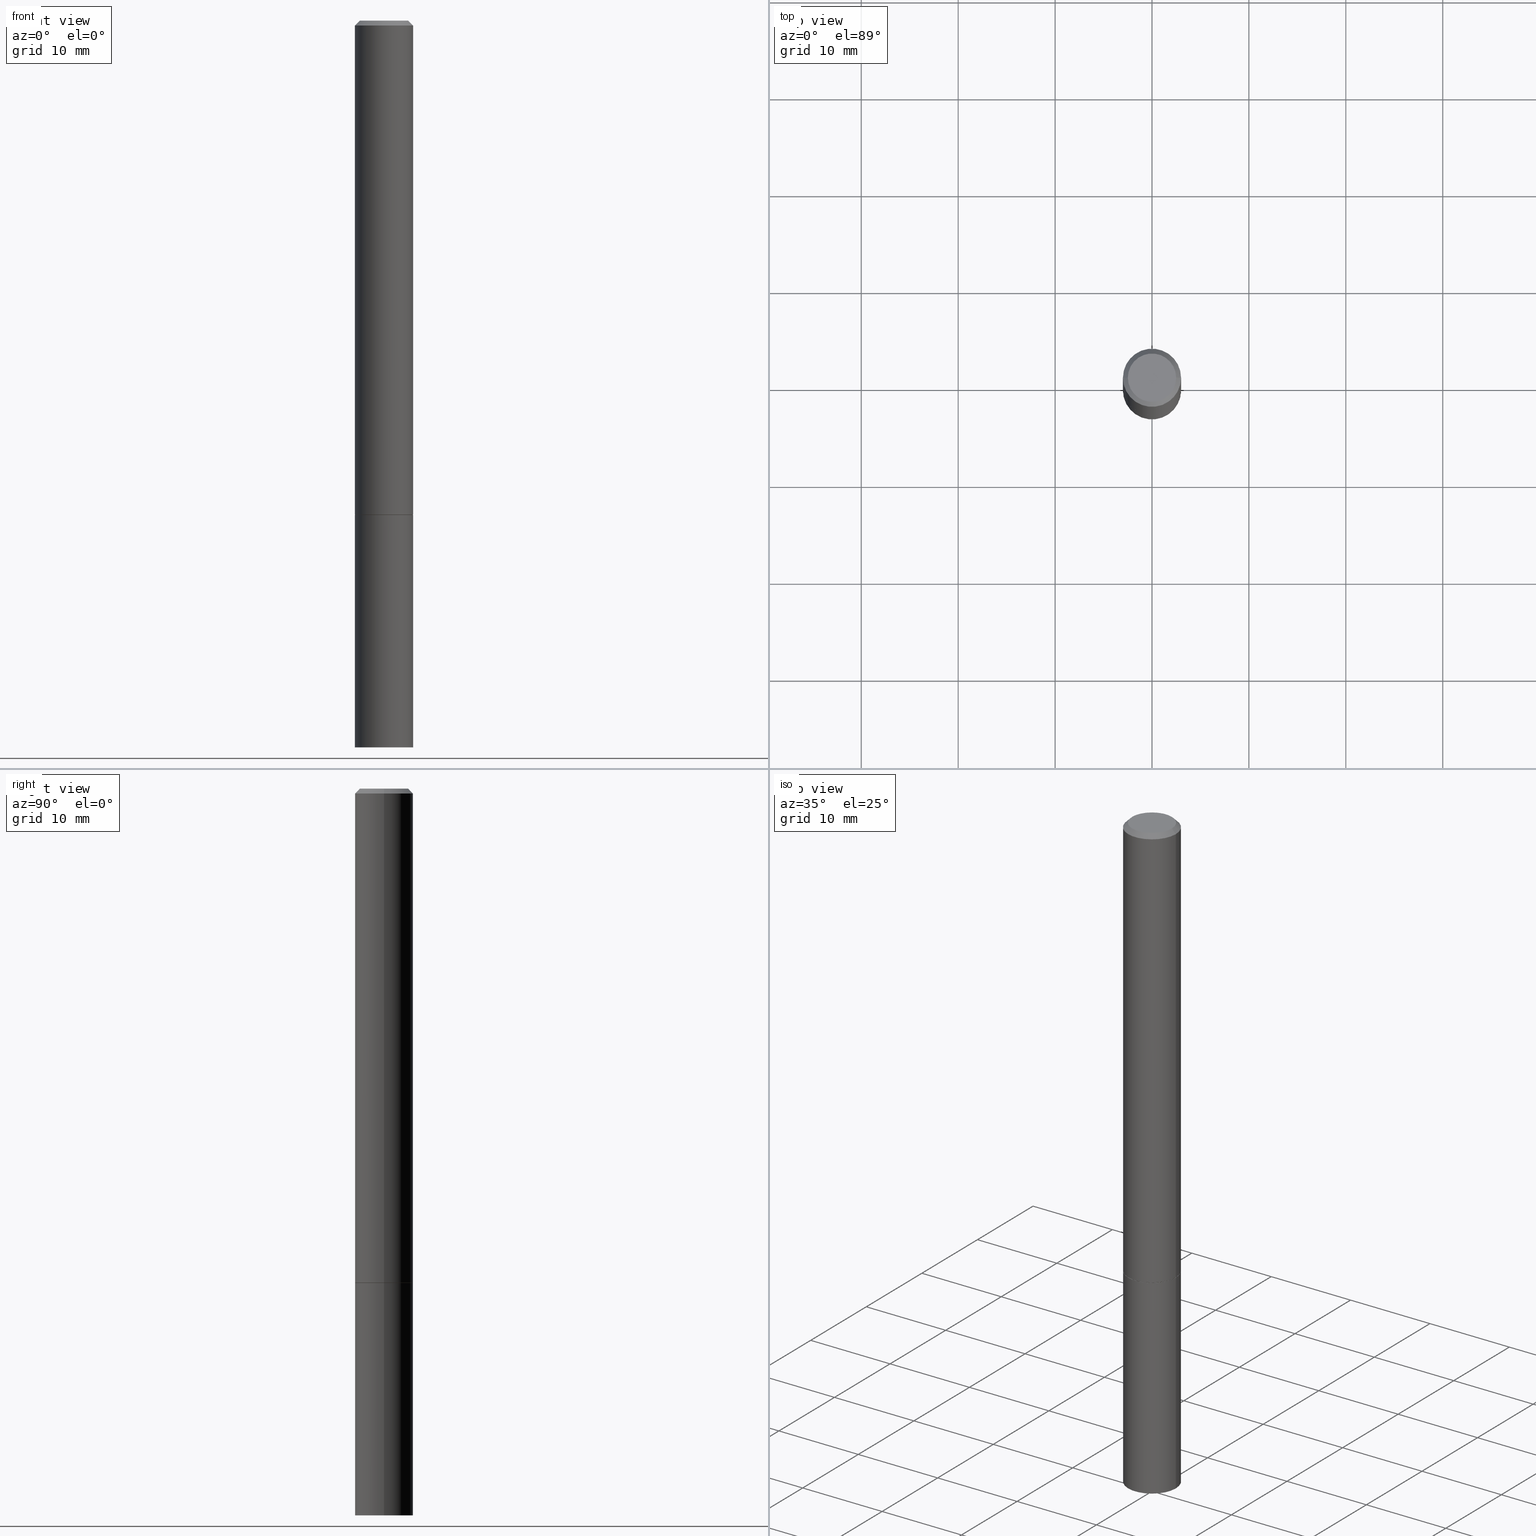
[diagram: canonical four-view strip — front | top / right | iso, engineering-drawing reading convention]
A machine part, canonical four-view strip (front | top / right | iso — engineering-drawing reading convention). The complete STEP part file that produces these views, byte-faithful:
ISO-10303-21;
HEADER;
FILE_DESCRIPTION (( 'STEP AP203' ),
    '1' );
FILE_NAME ('74333.STEP',
    '2024-02-29T08:42:18',
    ( '' ),
    ( '' ),
    'SwSTEP 2.0',
    'SolidWorks 2023',
    '' );
FILE_SCHEMA (( 'CONFIG_CONTROL_DESIGN' ));
ENDSEC;

DATA;
#1 = CC_DESIGN_DATE_AND_TIME_ASSIGNMENT ( #246, #184, ( #219 ) ) ;
#2 = CYLINDRICAL_SURFACE ( 'NONE', #16, 0.1180999999999998995 ) ;
#3 = AXIS2_PLACEMENT_3D ( 'NONE', #322, #35, #188 ) ;
#4 = CARTESIAN_POINT ( 'NONE',  ( 4.890937612370280165E-31, -6.982962677686301470E-17, -0.02000000000000003164 ) ) ;
#5 = DIRECTION ( 'NONE',  ( 1.000000000000000000, 0.000000000000000000, 0.000000000000000000 ) ) ;
#6 = AXIS2_PLACEMENT_3D ( 'NONE', #115, #114, #80 ) ;
#7 = VERTEX_POINT ( 'NONE', #255 ) ;
#8 = LINE ( 'NONE', #225, #189 ) ;
#9 = ORIENTED_EDGE ( 'NONE', *, *, #57, .F. ) ;
#10 = PRODUCT ( '74333', '74333', '', ( #172 ) ) ;
#11 = ADVANCED_FACE ( 'NONE', ( #358 ), #335, .F. ) ;
#12 = DIRECTION ( 'NONE',  ( 0.7071067811865466846, -7.319954787623252890E-15, -0.7071067811865483499 ) ) ;
#13 = ORIENTED_EDGE ( 'NONE', *, *, #150, .T. ) ;
#14 = LINE ( 'NONE', #350, #243 ) ;
#15 = ORIENTED_EDGE ( 'NONE', *, *, #224, .T. ) ;
#16 = AXIS2_PLACEMENT_3D ( 'NONE', #94, #154, #61 ) ;
#17 = FACE_OUTER_BOUND ( 'NONE', #348, .T. ) ;
#18 = APPROVAL_STATUS ( 'not_yet_approved' ) ;
#19 = EDGE_CURVE ( 'NONE', #160, #50, #28, .T. ) ;
#20 = ORIENTED_EDGE ( 'NONE', *, *, #137, .F. ) ;
#21 = FACE_OUTER_BOUND ( 'NONE', #171, .T. ) ;
#22 = CARTESIAN_POINT ( 'NONE',  ( 0.000000000000000000, 0.000000000000000000, 0.000000000000000000 ) ) ;
#23 = ORIENTED_EDGE ( 'NONE', *, *, #338, .F. ) ;
#24 = FACE_OUTER_BOUND ( 'NONE', #158, .T. ) ;
#25 = AXIS2_PLACEMENT_3D ( 'NONE', #77, #177, #337 ) ;
#26 = PERSON_AND_ORGANIZATION ( #318, #252 ) ;
#27 = PLANE ( 'NONE',  #163 ) ;
#28 = CIRCLE ( 'NONE', #289, 0.1170999999999999958 ) ;
#29 = EDGE_CURVE ( 'NONE', #354, #145, #191, .T. ) ;
#30 = APPROVAL ( #202, 'UNSPECIFIED' ) ;
#31 = ADVANCED_BREP_SHAPE_REPRESENTATION ( '74333', ( #63, #199, #66 ), #165 ) ;
#32 = AXIS2_PLACEMENT_3D ( 'NONE', #314, #197, #307 ) ;
#33 = ORIENTED_EDGE ( 'NONE', *, *, #360, .T. ) ;
#34 = EDGE_CURVE ( 'NONE', #253, #231, #151, .T. ) ;
#35 = DIRECTION ( 'NONE',  ( -2.445468806185136597E-29, 3.491481338843145583E-15, 1.000000000000000000 ) ) ;
#36 = ORIENTED_EDGE ( 'NONE', *, *, #168, .T. ) ;
#37 = VECTOR ( 'NONE', #286, 39.37007874015748143 ) ;
#38 = ORIENTED_EDGE ( 'NONE', *, *, #237, .T. ) ;
#39 = APPROVAL_PERSON_ORGANIZATION ( #26, #30, #143 ) ;
#40 = VERTEX_POINT ( 'NONE', #334 ) ;
#41 = APPROVAL_STATUS ( 'not_yet_approved' ) ;
#42 = ORIENTED_EDGE ( 'NONE', *, *, #285, .T. ) ;
#43 = AXIS2_PLACEMENT_3D ( 'NONE', #366, #96, #152 ) ;
#44 = CC_DESIGN_APPROVAL ( #147, ( #267 ) ) ;
#45 = ADVANCED_FACE ( 'NONE', ( #180 ), #182, .T. ) ;
#46 = CALENDAR_DATE ( 2024, 29, 2 ) ;
#47 = DIRECTION ( 'NONE',  ( -1.000000000000000000, 6.982962677686265922E-15, -4.876176775795935793E-29 ) ) ;
#48 = DIRECTION ( 'NONE',  ( -2.445468806185136597E-29, 3.491481338843145583E-15, 1.000000000000000000 ) ) ;
#49 = DIRECTION ( 'NONE',  ( -1.000000000000000000, 6.982962677686265922E-15, -4.876176775795935793E-29 ) ) ;
#50 = VERTEX_POINT ( 'NONE', #82 ) ;
#51 = ADVANCED_FACE ( 'NONE', ( #206 ), #312, .T. ) ;
#52 = AXIS2_PLACEMENT_3D ( 'NONE', #4, #118, #124 ) ;
#53 = PRODUCT_DEFINITION_FORMATION_WITH_SPECIFIED_SOURCE ( 'ANY', '', #10, .NOT_KNOWN. ) ;
#54 = CARTESIAN_POINT ( 'NONE',  ( -0.1180999999999997746, 7.548582654578835839E-16, -0.02000000000000003164 ) ) ;
#55 = DIRECTION ( 'NONE',  ( 1.000000000000000000, -6.982962677686266711E-15, 4.876176775795936353E-29 ) ) ;
#56 = DIMENSIONAL_EXPONENTS ( 1.000000000000000000, 0.000000000000000000, 0.000000000000000000, 0.000000000000000000, 0.000000000000000000, 0.000000000000000000, 0.000000000000000000 ) ;
#57 = EDGE_CURVE ( 'NONE', #247, #253, #344, .T. ) ;
#58 = CARTESIAN_POINT ( 'NONE',  ( 4.910256815939135309E-29, -7.010545380263150922E-15, -2.007899999999999796 ) ) ;
#59 = CIRCLE ( 'NONE', #131, 0.1181000000000000105 ) ;
#60 = LINE ( 'NONE', #325, #220 ) ;
#61 = DIRECTION ( 'NONE',  ( 1.000000000000000000, -6.982962677686266711E-15, 4.876176775795935232E-29 ) ) ;
#62 = LINE ( 'NONE', #54, #174 ) ;
#63 = MANIFOLD_SOLID_BREP ( 'Body-Move/Copy2[1]', #264 ) ;
#64 = CARTESIAN_POINT ( 'NONE',  ( 2.087702828670439639E-46, -2.980686340760894400E-32, -8.537024980200822558E-18 ) ) ;
#65 = CIRCLE ( 'NONE', #294, 0.1180999999999999966 ) ;
#66 = AXIS2_PLACEMENT_3D ( 'NONE', #356, #228, #5 ) ;
#67 =( LENGTH_UNIT ( ) NAMED_UNIT ( * ) SI_UNIT ( $, .METRE. ) );
#68 = ORIENTED_EDGE ( 'NONE', *, *, #208, .T. ) ;
#69 = CARTESIAN_POINT ( 'NONE',  ( -0.09809999999999979847, 7.199434520694525264E-16, -8.537024980205735990E-18 ) ) ;
#70 = EDGE_LOOP ( 'NONE', ( #200, #271 ) ) ;
#71 = AXIS2_PLACEMENT_3D ( 'NONE', #100, #192, #355 ) ;
#72 = EDGE_LOOP ( 'NONE', ( #288, #229, #223, #36 ) ) ;
#73 = CARTESIAN_POINT ( 'NONE',  ( 0.1181000000000000105, -7.831741791159054599E-15, -2.006899999999999462 ) ) ;
#74 = EDGE_LOOP ( 'NONE', ( #357, #136, #300, #251 ) ) ;
#75 = CARTESIAN_POINT ( 'NONE',  ( 7.220980290903470182E-29, -1.030964609733603853E-14, -2.952799999999999869 ) ) ;
#76 = APPROVAL ( #41, 'UNSPECIFIED' ) ;
#77 = CARTESIAN_POINT ( 'NONE',  ( 4.890937612370280165E-31, -6.982962677686301470E-17, -0.02000000000000003164 ) ) ;
#78 = CIRCLE ( 'NONE', #52, 0.1180999999999997746 ) ;
#79 = CC_DESIGN_PERSON_AND_ORGANIZATION_ASSIGNMENT ( #262, #310, ( #53 ) ) ;
#80 = DIRECTION ( 'NONE',  ( 1.000000000000000000, -6.982962677686264344E-15, 0.000000000000000000 ) ) ;
#81 = PERSON_AND_ORGANIZATION ( #318, #252 ) ;
#82 = CARTESIAN_POINT ( 'NONE',  ( -0.1170999999999999958, -6.173201382339850542E-15, -2.007899999999999796 ) ) ;
#83 = CIRCLE ( 'NONE', #3, 0.1181000000000000105 ) ;
#84 = APPROVAL_DATE_TIME ( #283, #30 ) ;
#85 = LOCAL_TIME ( 3, 42, 18.00000000000000000, #195 ) ;
#86 = DIRECTION ( 'NONE',  ( -2.445468806185136597E-29, 3.491481338843145583E-15, 1.000000000000000000 ) ) ;
#87 = ADVANCED_FACE ( 'NONE', ( #242 ), #324, .F. ) ;
#88 = DIRECTION ( 'NONE',  ( 2.438088387897960049E-29, -3.491481338843145188E-15, -1.000000000000000000 ) ) ;
#89 = CC_DESIGN_PERSON_AND_ORGANIZATION_ASSIGNMENT ( #81, #259, ( #53 ) ) ;
#90 = CARTESIAN_POINT ( 'NONE',  ( 2.087702828670439639E-46, -2.980686340760894400E-32, -8.537024980200822558E-18 ) ) ;
#91 = AXIS2_PLACEMENT_3D ( 'NONE', #345, #88, #241 ) ;
#92 = CARTESIAN_POINT ( 'NONE',  ( -0.1180999999999999966, -7.820944767866917317E-15, -2.952799999999999869 ) ) ;
#93 = LOCAL_TIME ( 3, 42, 18.00000000000000000, #176 ) ;
#94 = CARTESIAN_POINT ( 'NONE',  ( 0.000000000000000000, 0.000000000000000000, 0.000000000000000000 ) ) ;
#95 = EDGE_CURVE ( 'NONE', #278, #7, #226, .T. ) ;
#96 = DIRECTION ( 'NONE',  ( 2.445468806185136597E-29, -3.491481338843145583E-15, -1.000000000000000000 ) ) ;
#97 = PRODUCT_RELATED_PRODUCT_CATEGORY ( 'detail', '', ( #10 ) ) ;
#98 = ORIENTED_EDGE ( 'NONE', *, *, #342, .T. ) ;
#99 = CC_DESIGN_APPROVAL ( #76, ( #219 ) ) ;
#100 = CARTESIAN_POINT ( 'NONE',  ( 4.910256815939135309E-29, -7.010545380263150922E-15, -2.007899999999999796 ) ) ;
#101 = PERSON_AND_ORGANIZATION_ROLE ( 'design_owner' ) ;
#102 = ORIENTED_EDGE ( 'NONE', *, *, #285, .F. ) ;
#103 = DIRECTION ( 'NONE',  ( 1.000000000000000000, -6.982962677686264344E-15, 0.000000000000000000 ) ) ;
#104 = CC_DESIGN_DATE_AND_TIME_ASSIGNMENT ( #149, #364, ( #267 ) ) ;
#105 = VECTOR ( 'NONE', #12, 39.37007874015748143 ) ;
#106 = ORIENTED_EDGE ( 'NONE', *, *, #119, .T. ) ;
#107 = APPLICATION_PROTOCOL_DEFINITION ( 'international standard', 'config_control_design', 1994, #196 ) ;
#108 = ADVANCED_FACE ( 'NONE', ( #185 ), #2, .T. ) ;
#109 = PERSON_AND_ORGANIZATION ( #318, #252 ) ;
#110 = ORIENTED_EDGE ( 'NONE', *, *, #19, .T. ) ;
#111 = CARTESIAN_POINT ( 'NONE',  ( -0.1180999999999999966, 8.391509709326782957E-16, -5.809262341591043784E-30 ) ) ;
#112 = DIRECTION ( 'NONE',  ( 2.438088387897960049E-29, -3.491481338843145188E-15, -1.000000000000000000 ) ) ;
#113 = ORIENTED_EDGE ( 'NONE', *, *, #363, .F. ) ;
#114 = DIRECTION ( 'NONE',  ( -2.445468806185136597E-29, 3.491481338843145583E-15, 1.000000000000000000 ) ) ;
#115 = CARTESIAN_POINT ( 'NONE',  ( 4.910256815939135309E-29, -7.010545380263150922E-15, -2.007899999999999796 ) ) ;
#116 = AXIS2_PLACEMENT_3D ( 'NONE', #336, #179, #139 ) ;
#117 = LOCAL_TIME ( 3, 42, 18.00000000000000000, #210 ) ;
#118 = DIRECTION ( 'NONE',  ( -2.445468806185136597E-29, 3.491481338843145583E-15, 1.000000000000000000 ) ) ;
#119 = EDGE_CURVE ( 'NONE', #140, #247, #83, .T. ) ;
#120 = DIRECTION ( 'NONE',  ( 1.000000000000000000, -6.982962677686264344E-15, 0.000000000000000000 ) ) ;
#121 = AXIS2_PLACEMENT_3D ( 'NONE', #258, #112, #49 ) ;
#122 = DIRECTION ( 'NONE',  ( -2.445468806185136877E-29, 3.491481338843145188E-15, 1.000000000000000000 ) ) ;
#123 = CIRCLE ( 'NONE', #266, 0.1180999999999999966 ) ;
#124 = DIRECTION ( 'NONE',  ( 1.000000000000000000, -6.982962677686266711E-15, 0.000000000000000000 ) ) ;
#125 = DIRECTION ( 'NONE',  ( -0.7071067811865294761, 7.493145998870289474E-15, 0.7071067811865655584 ) ) ;
#126 = ORIENTED_EDGE ( 'NONE', *, *, #208, .F. ) ;
#127 = DIRECTION ( 'NONE',  ( -2.445468806185136597E-29, 3.491481338843145583E-15, 1.000000000000000000 ) ) ;
#128 = CARTESIAN_POINT ( 'NONE',  ( -0.1170999999999999958, -6.178499836688073733E-15, -2.007899999999999796 ) ) ;
#129 = EDGE_LOOP ( 'NONE', ( #110, #98, #126, #250 ) ) ;
#130 = COORDINATED_UNIVERSAL_TIME_OFFSET ( 5, 0, .BEHIND. ) ;
#131 = AXIS2_PLACEMENT_3D ( 'NONE', #249, #222, #103 ) ;
#132 = EDGE_CURVE ( 'NONE', #40, #145, #299, .T. ) ;
#133 = FACE_OUTER_BOUND ( 'NONE', #221, .T. ) ;
#134 = CALENDAR_DATE ( 2024, 29, 2 ) ;
#135 = APPLICATION_CONTEXT ( 'configuration controlled 3d designs of mechanical parts and assemblies' ) ;
#136 = ORIENTED_EDGE ( 'NONE', *, *, #29, .T. ) ;
#137 = EDGE_CURVE ( 'NONE', #351, #354, #65, .T. ) ;
#138 = ORIENTED_EDGE ( 'NONE', *, *, #150, .F. ) ;
#139 = DIRECTION ( 'NONE',  ( 1.000000000000000000, -6.982962677686266711E-15, 4.876176775795936353E-29 ) ) ;
#140 = VERTEX_POINT ( 'NONE', #217 ) ;
#141 = DATE_AND_TIME ( #340, #93 ) ;
#142 = PLANE ( 'NONE',  #121 ) ;
#143 = APPROVAL_ROLE ( '' ) ;
#144 = DIRECTION ( 'NONE',  ( -2.445468806185136597E-29, 3.491481338843145583E-15, 1.000000000000000000 ) ) ;
#145 = VERTEX_POINT ( 'NONE', #212 ) ;
#146 = CLOSED_SHELL ( 'NONE', ( #205, #308, #183, #45, #108, #214, #162, #11 ) ) ;
#147 = APPROVAL ( #18, 'UNSPECIFIED' ) ;
#148 = DIRECTION ( 'NONE',  ( 1.000000000000000000, -6.982962677686273021E-15, 0.000000000000000000 ) ) ;
#149 = DATE_AND_TIME ( #46, #117 ) ;
#150 = EDGE_CURVE ( 'NONE', #7, #278, #281, .T. ) ;
#151 = CIRCLE ( 'NONE', #193, 0.1180999999999997746 ) ;
#152 = DIRECTION ( 'NONE',  ( -1.000000000000000000, 6.982962677686266711E-15, 0.000000000000000000 ) ) ;
#153 = CARTESIAN_POINT ( 'NONE',  ( 4.910256815939135309E-29, -7.010545380263150922E-15, -2.007899999999999796 ) ) ;
#154 = DIRECTION ( 'NONE',  ( -2.445468806185136597E-29, 3.491481338843145583E-15, 1.000000000000000000 ) ) ;
#155 = DIRECTION ( 'NONE',  ( 1.000000000000000000, -6.982962677686264344E-15, 0.000000000000000000 ) ) ;
#156 = CARTESIAN_POINT ( 'NONE',  ( 7.220980290903470182E-29, -1.030964609733603853E-14, -2.952799999999999869 ) ) ;
#157 =( NAMED_UNIT ( * ) PLANE_ANGLE_UNIT ( ) SI_UNIT ( $, .RADIAN. ) );
#158 = EDGE_LOOP ( 'NONE', ( #68, #42, #327, #9 ) ) ;
#159 = DIRECTION ( 'NONE',  ( -2.445468806185136597E-29, 3.491481338843145583E-15, 1.000000000000000000 ) ) ;
#160 = VERTEX_POINT ( 'NONE', #270 ) ;
#161 = APPROVAL_DATE_TIME ( #170, #76 ) ;
#162 = ADVANCED_FACE ( 'NONE', ( #293 ), #27, .F. ) ;
#163 = AXIS2_PLACEMENT_3D ( 'NONE', #58, #295, #347 ) ;
#164 = CC_DESIGN_PERSON_AND_ORGANIZATION_ASSIGNMENT ( #109, #273, ( #219 ) ) ;
#165 =( GEOMETRIC_REPRESENTATION_CONTEXT ( 3 ) GLOBAL_UNCERTAINTY_ASSIGNED_CONTEXT ( ( #216 ) ) GLOBAL_UNIT_ASSIGNED_CONTEXT ( ( #317, #157, #291 ) ) REPRESENTATION_CONTEXT ( 'NONE', 'WORKASPACE' ) );
#166 = ORIENTED_EDGE ( 'NONE', *, *, #292, .F. ) ;
#167 = ORIENTED_EDGE ( 'NONE', *, *, #34, .T. ) ;
#168 = EDGE_CURVE ( 'NONE', #231, #253, #78, .T. ) ;
#169 = CARTESIAN_POINT ( 'NONE',  ( 0.1180999999999997746, -8.800544403136792597E-16, -0.02000000000000003164 ) ) ;
#170 = DATE_AND_TIME ( #277, #85 ) ;
#171 = EDGE_LOOP ( 'NONE', ( #20, #23 ) ) ;
#172 = MECHANICAL_CONTEXT ( 'NONE', #135, 'mechanical' ) ;
#173 = ORIENTED_EDGE ( 'NONE', *, *, #29, .F. ) ;
#174 = VECTOR ( 'NONE', #238, 39.37007874015748143 ) ;
#175 = CC_DESIGN_SECURITY_CLASSIFICATION ( #267, ( #53 ) ) ;
#176 = COORDINATED_UNIVERSAL_TIME_OFFSET ( 5, 0, .BEHIND. ) ;
#177 = DIRECTION ( 'NONE',  ( 2.445468806185136597E-29, -3.491481338843145583E-15, -1.000000000000000000 ) ) ;
#178 = CARTESIAN_POINT ( 'NONE',  ( 4.910256815939135309E-29, -7.010545380263150922E-15, -2.007899999999999796 ) ) ;
#179 = DIRECTION ( 'NONE',  ( -2.445468806185136597E-29, 3.491481338843145583E-15, 1.000000000000000000 ) ) ;
#180 = FACE_OUTER_BOUND ( 'NONE', #72, .T. ) ;
#181 = EDGE_LOOP ( 'NONE', ( #138, #38, #167, #113 ) ) ;
#182 = CONICAL_SURFACE ( 'NONE', #25, 0.1180999999999997746, 0.7853981633974471688 ) ;
#183 = ADVANCED_FACE ( 'NONE', ( #244 ), #260, .T. ) ;
#184 = DATE_TIME_ROLE ( 'creation_date' ) ;
#185 = FACE_OUTER_BOUND ( 'NONE', #275, .T. ) ;
#186 = DIRECTION ( 'NONE',  ( 1.000000000000000000, -6.982962677686267499E-15, 4.876195163481342132E-29 ) ) ;
#187 = DIRECTION ( 'NONE',  ( 1.000000000000000000, -6.982962677686265133E-15, 0.000000000000000000 ) ) ;
#188 = DIRECTION ( 'NONE',  ( 1.000000000000000000, -6.982962677686264344E-15, 0.000000000000000000 ) ) ;
#189 = VECTOR ( 'NONE', #256, 39.37007874015748143 ) ;
#190 = FACE_OUTER_BOUND ( 'NONE', #129, .T. ) ;
#191 = LINE ( 'NONE', #111, #37 ) ;
#192 = DIRECTION ( 'NONE',  ( -2.445468806185136597E-29, 3.491481338843145583E-15, 1.000000000000000000 ) ) ;
#193 = AXIS2_PLACEMENT_3D ( 'NONE', #234, #290, #230 ) ;
#194 = EDGE_LOOP ( 'NONE', ( #352, #166 ) ) ;
#195 = COORDINATED_UNIVERSAL_TIME_OFFSET ( 5, 0, .BEHIND. ) ;
#196 = APPLICATION_CONTEXT ( 'configuration controlled 3d designs of mechanical parts and assemblies' ) ;
#197 = DIRECTION ( 'NONE',  ( -2.445468806185136597E-29, 3.491481338843145583E-15, 1.000000000000000000 ) ) ;
#198 = DIRECTION ( 'NONE',  ( 1.000000000000000000, -6.982962677686265133E-15, 0.000000000000000000 ) ) ;
#199 = MANIFOLD_SOLID_BREP ( 'Body-Move/Copy2[2]', #146 ) ;
#200 = ORIENTED_EDGE ( 'NONE', *, *, #132, .T. ) ;
#201 = DIRECTION ( 'NONE',  ( -2.445468806185136597E-29, 3.491481338843145583E-15, 1.000000000000000000 ) ) ;
#202 = APPROVAL_STATUS ( 'not_yet_approved' ) ;
#203 = CARTESIAN_POINT ( 'NONE',  ( 6.850286386810212718E-16, 0.09809999999999979847, -3.467828318306122952E-16 ) ) ;
#204 = AXIS2_PLACEMENT_3D ( 'NONE', #153, #268, #187 ) ;
#205 = ADVANCED_FACE ( 'NONE', ( #190 ), #235, .T. ) ;
#206 = FACE_OUTER_BOUND ( 'NONE', #74, .T. ) ;
#207 = PRODUCT_DEFINITION_SHAPE ( 'NONE', 'NONE',  #219 ) ;
#208 = EDGE_CURVE ( 'NONE', #247, #140, #59, .T. ) ;
#209 = CIRCLE ( 'NONE', #265, 0.1180999999999999966 ) ;
#210 = COORDINATED_UNIVERSAL_TIME_OFFSET ( 5, 0, .BEHIND. ) ;
#211 = DIRECTION ( 'NONE',  ( -2.445468806185136597E-29, 3.491481338843145583E-15, 1.000000000000000000 ) ) ;
#212 = CARTESIAN_POINT ( 'NONE',  ( -0.1180999999999999966, -7.820944767866917317E-15, -2.007899999999999796 ) ) ;
#213 = LOCAL_TIME ( 3, 42, 18.00000000000000000, #130 ) ;
#214 = ADVANCED_FACE ( 'NONE', ( #133 ), #315, .T. ) ;
#215 = DIRECTION ( 'NONE',  ( 1.000000000000000000, -6.982962677686267499E-15, 4.876195163481342132E-29 ) ) ;
#216 = UNCERTAINTY_MEASURE_WITH_UNIT (LENGTH_MEASURE( 1.000000000000000082E-05 ), #317, 'distance_accuracy_value', 'NONE');
#217 = CARTESIAN_POINT ( 'NONE',  ( -0.1181000000000000383, -2.699290791917902676E-15, -2.006899999999999462 ) ) ;
#218 = CARTESIAN_POINT ( 'NONE',  ( 0.1180999999999999966, -1.113433398957078679E-14, -2.952799999999999869 ) ) ;
#219 = PRODUCT_DEFINITION ( 'UNKNOWN', '', #53, #298 ) ;
#220 = VECTOR ( 'NONE', #361, 39.37007874015748143 ) ;
#221 = EDGE_LOOP ( 'NONE', ( #333, #248, #15, #245 ) ) ;
#222 = DIRECTION ( 'NONE',  ( -2.445468806185136597E-29, 3.491481338843145583E-15, 1.000000000000000000 ) ) ;
#223 = ORIENTED_EDGE ( 'NONE', *, *, #363, .T. ) ;
#224 = EDGE_CURVE ( 'NONE', #160, #247, #14, .T. ) ;
#225 = CARTESIAN_POINT ( 'NONE',  ( -0.1180999999999998995, 8.391509709326776054E-16, -5.809262341591038879E-30 ) ) ;
#226 = CIRCLE ( 'NONE', #321, 0.09809999999999979847 ) ;
#227 = DIRECTION ( 'NONE',  ( 0.7071067811865294761, -2.468850131082068128E-15, 0.7071067811865655584 ) ) ;
#228 = DIRECTION ( 'NONE',  ( 0.000000000000000000, 0.000000000000000000, 1.000000000000000000 ) ) ;
#229 = ORIENTED_EDGE ( 'NONE', *, *, #95, .F. ) ;
#230 = DIRECTION ( 'NONE',  ( 1.000000000000000000, -6.982962677686266711E-15, 0.000000000000000000 ) ) ;
#231 = VERTEX_POINT ( 'NONE', #276 ) ;
#232 = EDGE_CURVE ( 'NONE', #145, #40, #123, .T. ) ;
#233 = CYLINDRICAL_SURFACE ( 'NONE', #116, 0.1180999999999999966 ) ;
#234 = CARTESIAN_POINT ( 'NONE',  ( 4.890937612370280165E-31, -6.982962677686301470E-17, -0.02000000000000003164 ) ) ;
#235 = CONICAL_SURFACE ( 'NONE', #304, 0.1170999999999999958, 0.7853981633974227439 ) ;
#236 = COORDINATED_UNIVERSAL_TIME_OFFSET ( 5, 0, .BEHIND. ) ;
#237 = EDGE_CURVE ( 'NONE', #7, #253, #302, .T. ) ;
#238 = DIRECTION ( 'NONE',  ( -0.7071067811865466846, 2.468850131082247989E-15, -0.7071067811865483499 ) ) ;
#239 = PERSON_AND_ORGANIZATION_ROLE ( 'classification_officer' ) ;
#240 = DIRECTION ( 'NONE',  ( 1.000000000000000000, -6.982962677686273021E-15, 0.000000000000000000 ) ) ;
#241 = DIRECTION ( 'NONE',  ( -1.000000000000000000, 6.982962677686265922E-15, -4.876176775795935793E-29 ) ) ;
#242 = FACE_OUTER_BOUND ( 'NONE', #70, .T. ) ;
#243 = VECTOR ( 'NONE', #227, 39.37007874015748143 ) ;
#244 = FACE_OUTER_BOUND ( 'NONE', #181, .T. ) ;
#245 = ORIENTED_EDGE ( 'NONE', *, *, #119, .F. ) ;
#246 = DATE_AND_TIME ( #134, #213 ) ;
#247 = VERTEX_POINT ( 'NONE', #73 ) ;
#248 = ORIENTED_EDGE ( 'NONE', *, *, #292, .T. ) ;
#249 = CARTESIAN_POINT ( 'NONE',  ( 4.907811347132949706E-29, -7.007053898924307126E-15, -2.006899999999999462 ) ) ;
#250 = ORIENTED_EDGE ( 'NONE', *, *, #224, .F. ) ;
#251 = ORIENTED_EDGE ( 'NONE', *, *, #360, .F. ) ;
#252 = ORGANIZATION ( 'UNSPECIFIED', 'UNSPECIFIED', '' ) ;
#253 = VERTEX_POINT ( 'NONE', #169 ) ;
#254 = PERSON_AND_ORGANIZATION ( #318, #252 ) ;
#255 = CARTESIAN_POINT ( 'NONE',  ( 0.09809999999999979847, -7.765346469475326737E-16, -8.537024980195711910E-18 ) ) ;
#256 = DIRECTION ( 'NONE',  ( -2.445468806185136877E-29, 3.491481338843145188E-15, 1.000000000000000000 ) ) ;
#257 = CALENDAR_DATE ( 2024, 29, 2 ) ;
#258 = CARTESIAN_POINT ( 'NONE',  ( 8.246878922348201475E-16, 0.1180999999999896855, -2.952800000000000313 ) ) ;
#259 = PERSON_AND_ORGANIZATION_ROLE ( 'design_supplier' ) ;
#260 = CONICAL_SURFACE ( 'NONE', #43, 0.1180999999999997746, 0.7853981633974471688 ) ;
#261 = LOCAL_TIME ( 3, 42, 18.00000000000000000, #236 ) ;
#262 = PERSON_AND_ORGANIZATION ( #318, #252 ) ;
#263 = SECURITY_CLASSIFICATION_LEVEL ( 'unclassified' ) ;
#264 = CLOSED_SHELL ( 'NONE', ( #51, #303, #87, #296 ) ) ;
#265 = AXIS2_PLACEMENT_3D ( 'NONE', #75, #48, #148 ) ;
#266 = AXIS2_PLACEMENT_3D ( 'NONE', #306, #127, #198 ) ;
#267 = SECURITY_CLASSIFICATION ( '', '', #263 ) ;
#268 = DIRECTION ( 'NONE',  ( -2.445468806185136597E-29, 3.491481338843145583E-15, 1.000000000000000000 ) ) ;
#269 = ORIENTED_EDGE ( 'NONE', *, *, #95, .T. ) ;
#270 = CARTESIAN_POINT ( 'NONE',  ( 0.1170999999999999958, -7.828250309820211592E-15, -2.007899999999999796 ) ) ;
#271 = ORIENTED_EDGE ( 'NONE', *, *, #232, .T. ) ;
#272 = CARTESIAN_POINT ( 'NONE',  ( 0.1180999999999997746, -8.800544403136792597E-16, -0.02000000000000003164 ) ) ;
#273 = PERSON_AND_ORGANIZATION_ROLE ( 'creator' ) ;
#274 = AXIS2_PLACEMENT_3D ( 'NONE', #203, #311, #47 ) ;
#275 = EDGE_LOOP ( 'NONE', ( #102, #106, #332, #353 ) ) ;
#276 = CARTESIAN_POINT ( 'NONE',  ( -0.1180999999999997746, 7.548582654578835839E-16, -0.02000000000000003164 ) ) ;
#277 = CALENDAR_DATE ( 2024, 29, 2 ) ;
#278 = VERTEX_POINT ( 'NONE', #69 ) ;
#279 = APPROVAL_ROLE ( '' ) ;
#280 = CC_DESIGN_PERSON_AND_ORGANIZATION_ASSIGNMENT ( #331, #101, ( #10 ) ) ;
#281 = CIRCLE ( 'NONE', #349, 0.09809999999999979847 ) ;
#282 = APPROVAL_PERSON_ORGANIZATION ( #254, #76, #279 ) ;
#283 = DATE_AND_TIME ( #257, #261 ) ;
#284 = CC_DESIGN_PERSON_AND_ORGANIZATION_ASSIGNMENT ( #359, #239, ( #267 ) ) ;
#285 = EDGE_CURVE ( 'NONE', #140, #231, #8, .T. ) ;
#286 = DIRECTION ( 'NONE',  ( -2.445468806185136877E-29, 3.491481338843145188E-15, 1.000000000000000000 ) ) ;
#287 = CIRCLE ( 'NONE', #6, 0.1170999999999999958 ) ;
#288 = ORIENTED_EDGE ( 'NONE', *, *, #237, .F. ) ;
#289 = AXIS2_PLACEMENT_3D ( 'NONE', #178, #201, #155 ) ;
#290 = DIRECTION ( 'NONE',  ( -2.445468806185136597E-29, 3.491481338843145583E-15, 1.000000000000000000 ) ) ;
#291 =( NAMED_UNIT ( * ) SI_UNIT ( $, .STERADIAN. ) SOLID_ANGLE_UNIT ( ) );
#292 = EDGE_CURVE ( 'NONE', #50, #160, #287, .T. ) ;
#293 = FACE_OUTER_BOUND ( 'NONE', #194, .T. ) ;
#294 = AXIS2_PLACEMENT_3D ( 'NONE', #156, #211, #240 ) ;
#295 = DIRECTION ( 'NONE',  ( -2.438088387897960049E-29, 3.491481338843145188E-15, 1.000000000000000000 ) ) ;
#296 = ADVANCED_FACE ( 'NONE', ( #17 ), #233, .T. ) ;
#297 = LENGTH_MEASURE_WITH_UNIT ( LENGTH_MEASURE( 0.02539999999999999897 ), #67 );
#298 = DESIGN_CONTEXT ( 'detailed design', #196, 'design' ) ;
#299 = CIRCLE ( 'NONE', #204, 0.1180999999999999966 ) ;
#300 = ORIENTED_EDGE ( 'NONE', *, *, #132, .F. ) ;
#301 = DIRECTION ( 'NONE',  ( -2.445468806185136597E-29, 3.491481338843145583E-15, 1.000000000000000000 ) ) ;
#302 = LINE ( 'NONE', #272, #105 ) ;
#303 = ADVANCED_FACE ( 'NONE', ( #21 ), #142, .T. ) ;
#304 = AXIS2_PLACEMENT_3D ( 'NONE', #343, #301, #120 ) ;
#305 = EDGE_LOOP ( 'NONE', ( #269, #13 ) ) ;
#306 = CARTESIAN_POINT ( 'NONE',  ( 4.910256815939135309E-29, -7.010545380263150922E-15, -2.007899999999999796 ) ) ;
#307 = DIRECTION ( 'NONE',  ( 1.000000000000000000, -6.982962677686266711E-15, 4.876176775795935232E-29 ) ) ;
#308 = ADVANCED_FACE ( 'NONE', ( #24 ), #365, .T. ) ;
#309 = ORIENTED_EDGE ( 'NONE', *, *, #338, .T. ) ;
#310 = PERSON_AND_ORGANIZATION_ROLE ( 'creator' ) ;
#311 = DIRECTION ( 'NONE',  ( 2.438088387897960049E-29, -3.491481338843145188E-15, -1.000000000000000000 ) ) ;
#312 = CYLINDRICAL_SURFACE ( 'NONE', #341, 0.1180999999999999966 ) ;
#313 = PERSON_AND_ORGANIZATION ( #318, #252 ) ;
#314 = CARTESIAN_POINT ( 'NONE',  ( 0.000000000000000000, 0.000000000000000000, 0.000000000000000000 ) ) ;
#315 = CONICAL_SURFACE ( 'NONE', #71, 0.1170999999999999958, 0.7853981633974227439 ) ;
#316 = APPROVAL_PERSON_ORGANIZATION ( #313, #147, #319 ) ;
#317 =( CONVERSION_BASED_UNIT ( 'INCH', #297 ) LENGTH_UNIT ( ) NAMED_UNIT ( #56 ) );
#318 = PERSON ( 'UNSPECIFIED', 'UNSPECIFIED', 'UNSPECIFIED', ('UNSPECIFIED'), ('UNSPECIFIED'), ('UNSPECIFIED') ) ;
#319 = APPROVAL_ROLE ( '' ) ;
#320 = CARTESIAN_POINT ( 'NONE',  ( 0.1180999999999998995, -8.246878922347473751E-16, 5.758764772214994835E-30 ) ) ;
#321 = AXIS2_PLACEMENT_3D ( 'NONE', #90, #86, #186 ) ;
#322 = CARTESIAN_POINT ( 'NONE',  ( 4.907811347132949706E-29, -7.007053898924307126E-15, -2.006899999999999462 ) ) ;
#323 = LINE ( 'NONE', #128, #326 ) ;
#324 = PLANE ( 'NONE',  #91 ) ;
#325 = CARTESIAN_POINT ( 'NONE',  ( 0.1180999999999999966, -8.246878922347480654E-16, 5.758764772215000440E-30 ) ) ;
#326 = VECTOR ( 'NONE', #125, 39.37007874015748143 ) ;
#327 = ORIENTED_EDGE ( 'NONE', *, *, #34, .F. ) ;
#328 = CC_DESIGN_APPROVAL ( #30, ( #53 ) ) ;
#329 = ORIENTED_EDGE ( 'NONE', *, *, #232, .F. ) ;
#330 = VECTOR ( 'NONE', #122, 39.37007874015748143 ) ;
#331 = PERSON_AND_ORGANIZATION ( #318, #252 ) ;
#332 = ORIENTED_EDGE ( 'NONE', *, *, #57, .T. ) ;
#333 = ORIENTED_EDGE ( 'NONE', *, *, #342, .F. ) ;
#334 = CARTESIAN_POINT ( 'NONE',  ( 0.1180999999999999966, -7.835233272497899184E-15, -2.007899999999999796 ) ) ;
#335 = PLANE ( 'NONE',  #274 ) ;
#336 = CARTESIAN_POINT ( 'NONE',  ( 0.000000000000000000, 0.000000000000000000, 0.000000000000000000 ) ) ;
#337 = DIRECTION ( 'NONE',  ( -1.000000000000000000, 6.982962677686266711E-15, 0.000000000000000000 ) ) ;
#338 = EDGE_CURVE ( 'NONE', #354, #351, #209, .T. ) ;
#339 = SHAPE_DEFINITION_REPRESENTATION ( #207, #31 ) ;
#340 = CALENDAR_DATE ( 2024, 29, 2 ) ;
#341 = AXIS2_PLACEMENT_3D ( 'NONE', #22, #144, #55 ) ;
#342 = EDGE_CURVE ( 'NONE', #50, #140, #323, .T. ) ;
#343 = CARTESIAN_POINT ( 'NONE',  ( 4.910256815939135309E-29, -7.010545380263150922E-15, -2.007899999999999796 ) ) ;
#344 = LINE ( 'NONE', #320, #330 ) ;
#345 = CARTESIAN_POINT ( 'NONE',  ( 8.246878922347970734E-16, 0.1180999999999929745, -2.007900000000000240 ) ) ;
#346 = APPLICATION_PROTOCOL_DEFINITION ( 'international standard', 'config_control_design', 1994, #135 ) ;
#347 = DIRECTION ( 'NONE',  ( 1.000000000000000000, -6.982962677686265922E-15, 4.876176775795935793E-29 ) ) ;
#348 = EDGE_LOOP ( 'NONE', ( #173, #309, #33, #329 ) ) ;
#349 = AXIS2_PLACEMENT_3D ( 'NONE', #64, #159, #215 ) ;
#350 = CARTESIAN_POINT ( 'NONE',  ( 0.1170999999999999958, -7.828250309820211592E-15, -2.007899999999999796 ) ) ;
#351 = VERTEX_POINT ( 'NONE', #218 ) ;
#352 = ORIENTED_EDGE ( 'NONE', *, *, #19, .F. ) ;
#353 = ORIENTED_EDGE ( 'NONE', *, *, #168, .F. ) ;
#354 = VERTEX_POINT ( 'NONE', #92 ) ;
#355 = DIRECTION ( 'NONE',  ( 1.000000000000000000, -6.982962677686264344E-15, 0.000000000000000000 ) ) ;
#356 = CARTESIAN_POINT ( 'NONE',  ( 0.000000000000000000, 0.000000000000000000, 0.000000000000000000 ) ) ;
#357 = ORIENTED_EDGE ( 'NONE', *, *, #137, .T. ) ;
#358 = FACE_OUTER_BOUND ( 'NONE', #305, .T. ) ;
#359 = PERSON_AND_ORGANIZATION ( #318, #252 ) ;
#360 = EDGE_CURVE ( 'NONE', #351, #40, #60, .T. ) ;
#361 = DIRECTION ( 'NONE',  ( -2.445468806185136877E-29, 3.491481338843145188E-15, 1.000000000000000000 ) ) ;
#362 = APPROVAL_DATE_TIME ( #141, #147 ) ;
#363 = EDGE_CURVE ( 'NONE', #278, #231, #62, .T. ) ;
#364 = DATE_TIME_ROLE ( 'classification_date' ) ;
#365 = CYLINDRICAL_SURFACE ( 'NONE', #32, 0.1180999999999998995 ) ;
#366 = CARTESIAN_POINT ( 'NONE',  ( 4.890937612370280165E-31, -6.982962677686301470E-17, -0.02000000000000003164 ) ) ;
ENDSEC;
END-ISO-10303-21;
